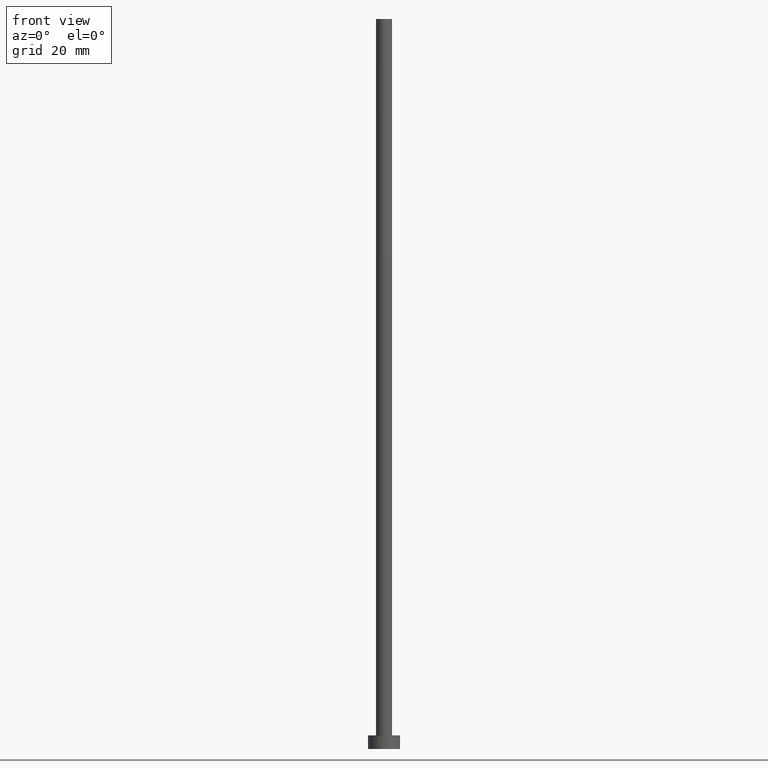
[diagram: clean part render]
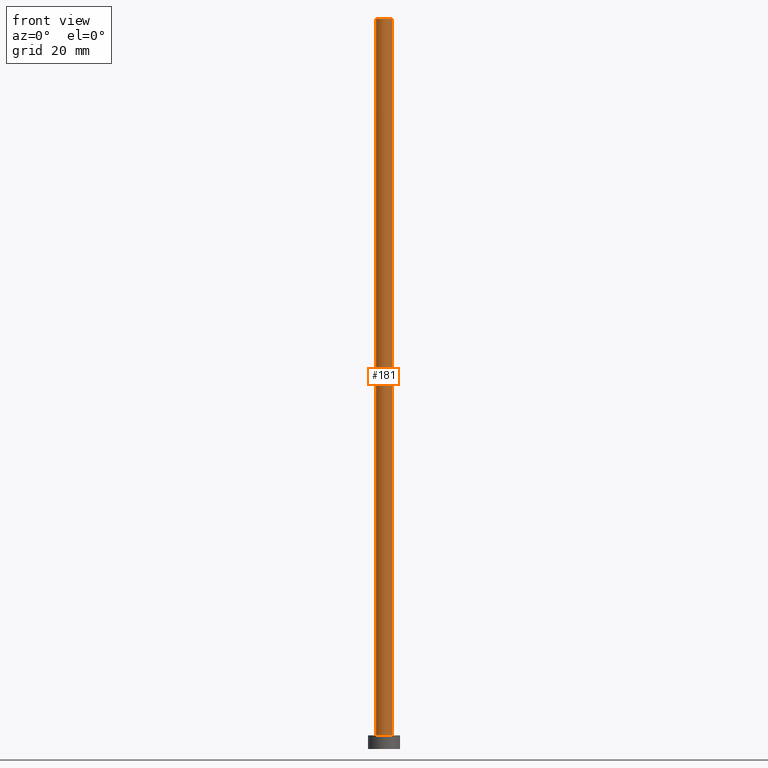
[diagram: same view with one face highlighted and labeled with its STEP entity id]
A machine part, front view. The second image highlights one B-rep face of the part: STEP entity #181.
In plain terms, the highlighted cylindrical surface (edge-blend (fillet) strip) has radius 1.75 mm, axis along (-0, -0, -1).
Its self-contained STEP definition (entity closure, byte-faithful):
#8 = CIRCLE ( 'NONE', #241, 1.750000000000000000 ) ;
#9 = EDGE_CURVE ( 'NONE', #39, #59, #228, .T. ) ;
#16 = ORIENTED_EDGE ( 'NONE', *, *, #91, .F. ) ;
#23 = CARTESIAN_POINT ( 'NONE',  ( 0.000000000000000000, 0.000000000000000000, 160.0000000000000000 ) ) ;
#39 = VERTEX_POINT ( 'NONE', #157 ) ;
#41 = CARTESIAN_POINT ( 'NONE',  ( 0.000000000000000000, 0.000000000000000000, 160.0000000000000000 ) ) ;
#56 = AXIS2_PLACEMENT_3D ( 'NONE', #201, #86, #183 ) ;
#57 = ORIENTED_EDGE ( 'NONE', *, *, #9, .F. ) ;
#59 = VERTEX_POINT ( 'NONE', #131 ) ;
#66 = CYLINDRICAL_SURFACE ( 'NONE', #140, 1.750000000000000000 ) ;
#83 = CARTESIAN_POINT ( 'NONE',  ( -1.750000000000000000, 0.000000000000000000, 160.0000000000000000 ) ) ;
#86 = DIRECTION ( 'NONE',  ( 0.000000000000000000, 0.000000000000000000, 1.000000000000000000 ) ) ;
#91 = EDGE_CURVE ( 'NONE', #194, #39, #8, .T. ) ;
#101 = CARTESIAN_POINT ( 'NONE',  ( 1.750000000000000000, 2.143131898507868297E-16, 160.0000000000000000 ) ) ;
#102 = DIRECTION ( 'NONE',  ( 0.000000000000000000, 0.000000000000000000, 1.000000000000000000 ) ) ;
#106 = DIRECTION ( 'NONE',  ( -0.000000000000000000, -0.000000000000000000, -1.000000000000000000 ) ) ;
#108 = EDGE_CURVE ( 'NONE', #247, #59, #163, .T. ) ;
#116 = ORIENTED_EDGE ( 'NONE', *, *, #132, .T. ) ;
#118 = EDGE_LOOP ( 'NONE', ( #57, #16, #116, #251 ) ) ;
#131 = CARTESIAN_POINT ( 'NONE',  ( 1.750000000000000000, 2.143131898507868297E-16, 3.000000000000000000 ) ) ;
#132 = EDGE_CURVE ( 'NONE', #194, #247, #255, .T. ) ;
#138 = DIRECTION ( 'NONE',  ( -0.000000000000000000, -0.000000000000000000, -1.000000000000000000 ) ) ;
#140 = AXIS2_PLACEMENT_3D ( 'NONE', #41, #106, #184 ) ;
#142 = CARTESIAN_POINT ( 'NONE',  ( -1.750000000000000000, 0.000000000000000000, 3.000000000000000000 ) ) ;
#157 = CARTESIAN_POINT ( 'NONE',  ( 1.750000000000000000, 2.143131898507868297E-16, 160.0000000000000000 ) ) ;
#160 = DIRECTION ( 'NONE',  ( 1.000000000000000000, 0.000000000000000000, 0.000000000000000000 ) ) ;
#161 = VECTOR ( 'NONE', #138, 1000.000000000000000 ) ;
#163 = CIRCLE ( 'NONE', #56, 1.750000000000000000 ) ;
#181 = ADVANCED_FACE ( 'NONE', ( #242 ), #66, .T. ) ;
#183 = DIRECTION ( 'NONE',  ( 1.000000000000000000, 0.000000000000000000, 0.000000000000000000 ) ) ;
#184 = DIRECTION ( 'NONE',  ( -1.000000000000000000, 0.000000000000000000, 0.000000000000000000 ) ) ;
#185 = CARTESIAN_POINT ( 'NONE',  ( -1.750000000000000000, 0.000000000000000000, 160.0000000000000000 ) ) ;
#190 = VECTOR ( 'NONE', #215, 1000.000000000000000 ) ;
#194 = VERTEX_POINT ( 'NONE', #185 ) ;
#201 = CARTESIAN_POINT ( 'NONE',  ( 0.000000000000000000, 0.000000000000000000, 3.000000000000000000 ) ) ;
#215 = DIRECTION ( 'NONE',  ( -0.000000000000000000, -0.000000000000000000, -1.000000000000000000 ) ) ;
#228 = LINE ( 'NONE', #101, #161 ) ;
#241 = AXIS2_PLACEMENT_3D ( 'NONE', #23, #102, #160 ) ;
#242 = FACE_OUTER_BOUND ( 'NONE', #118, .T. ) ;
#247 = VERTEX_POINT ( 'NONE', #142 ) ;
#251 = ORIENTED_EDGE ( 'NONE', *, *, #108, .T. ) ;
#255 = LINE ( 'NONE', #83, #190 ) ;